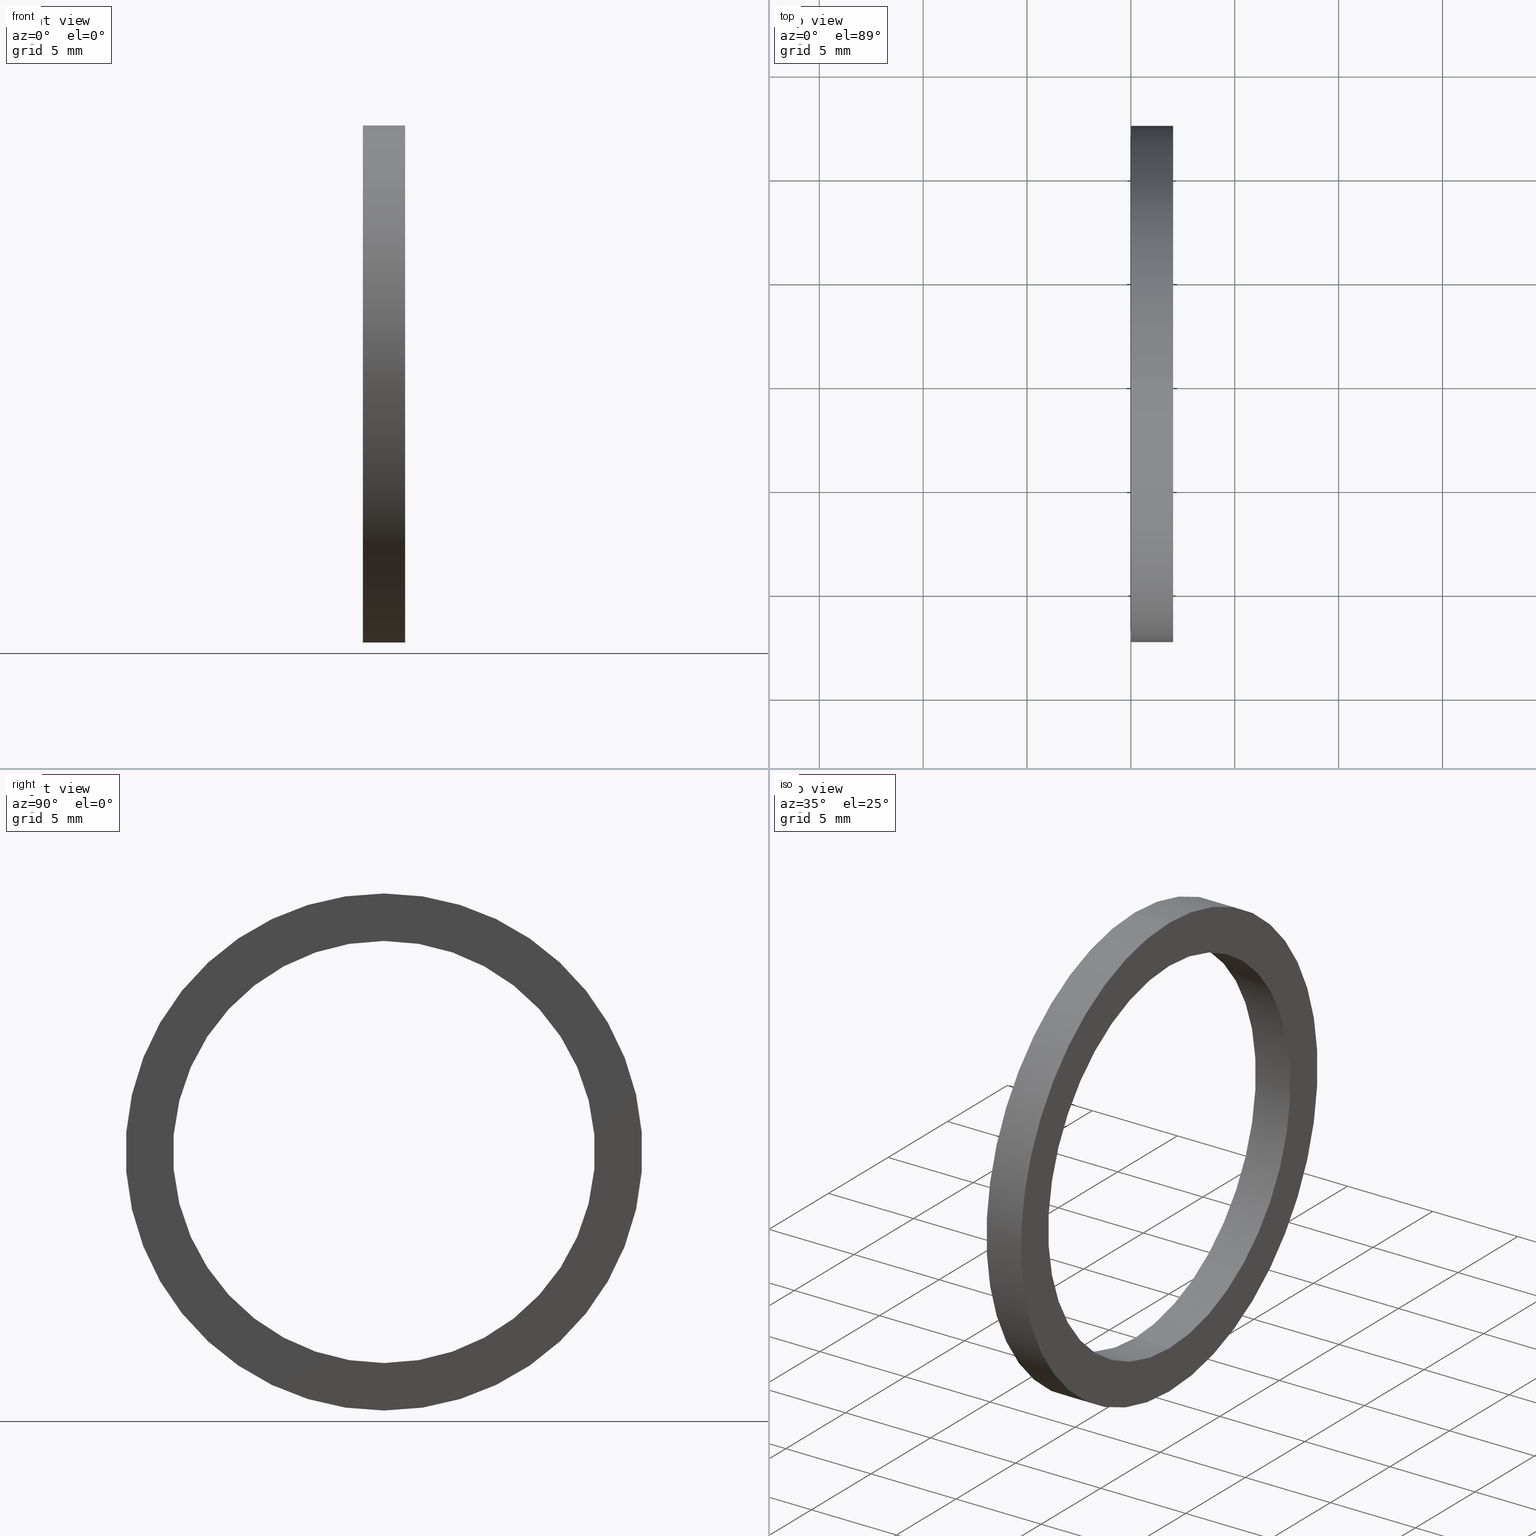
[diagram: canonical four-view strip — front | top / right | iso, engineering-drawing reading convention]
A machine part, canonical four-view strip (front | top / right | iso — engineering-drawing reading convention). The complete STEP part file that produces these views, byte-faithful:
ISO-10303-21;
HEADER;
FILE_DESCRIPTION (( 'STEP AP203' ),
    '1' );
FILE_NAME ('SR-13-VT.STEP',
    '2008-06-25T04:53:22',
    ( 'BSI05' ),
    ( 'BAYSTATE' ),
    'SwSTEP 2.0',
    'SolidWorks 2007',
    '' );
FILE_SCHEMA (( 'CONFIG_CONTROL_DESIGN' ));
ENDSEC;

DATA;
#1 = CARTESIAN_POINT ( 'NONE',  ( 0.0000000000000000000, 0.0000000000000000000, 0.0000000000000000000 ) ) ;
#2 = DIRECTION ( 'NONE',  ( -1.000000000000000000, 0.0000000000000000000, 0.0000000000000000000 ) ) ;
#3 = DIRECTION ( 'NONE',  ( 0.0000000000000000000, 0.0000000000000000000, 1.000000000000000000 ) ) ;
#4 = ORIENTED_EDGE ( 'NONE', *, *, #35, .T. ) ;
#5 = ORIENTED_EDGE ( 'NONE', *, *, #138, .T. ) ;
#6 = CLOSED_SHELL ( 'NONE', ( #48, #152, #137, #10, #13, #9 ) ) ;
#7 = ORIENTED_EDGE ( 'NONE', *, *, #155, .F. ) ;
#8 = ORIENTED_EDGE ( 'NONE', *, *, #12, .F. ) ;
#9 = ADVANCED_FACE ( 'NONE', ( #28 ), #25, .F. ) ;
#10 = ADVANCED_FACE ( 'NONE', ( #26 ), #104, .T. ) ;
#11 = ORIENTED_EDGE ( 'NONE', *, *, #156, .F. ) ;
#12 = EDGE_CURVE ( 'NONE', #32, #22, #130, .T. ) ;
#13 = ADVANCED_FACE ( 'NONE', ( #131, #126 ), #125, .T. ) ;
#14 = EDGE_LOOP ( 'NONE', ( #30, #45 ) ) ;
#15 = ORIENTED_EDGE ( 'NONE', *, *, #24, .F. ) ;
#16 = EDGE_LOOP ( 'NONE', ( #139, #136 ) ) ;
#17 = EDGE_CURVE ( 'NONE', #22, #153, #124, .T. ) ;
#18 = ORIENTED_EDGE ( 'NONE', *, *, #17, .F. ) ;
#19 = EDGE_CURVE ( 'NONE', #153, #34, #115, .T. ) ;
#20 = ORIENTED_EDGE ( 'NONE', *, *, #21, .T. ) ;
#21 = EDGE_CURVE ( 'NONE', #22, #32, #150, .T. ) ;
#22 = VERTEX_POINT ( 'NONE', #146 ) ;
#23 = ORIENTED_EDGE ( 'NONE', *, *, #24, .T. ) ;
#24 = EDGE_CURVE ( 'NONE', #32, #34, #145, .T. ) ;
#25 = CYLINDRICAL_SURFACE ( 'NONE', #107, 0.4000000000000000200 ) ;
#26 = FACE_OUTER_BOUND ( 'NONE', #42, .T. ) ;
#27 = CARTESIAN_POINT ( 'NONE',  ( -1.721125226614714300, 0.0000000000000000000, 0.0000000000000000000 ) ) ;
#28 = FACE_OUTER_BOUND ( 'NONE', #41, .T. ) ;
#29 = ORIENTED_EDGE ( 'NONE', *, *, #12, .T. ) ;
#30 = ORIENTED_EDGE ( 'NONE', *, *, #31, .T. ) ;
#31 = EDGE_CURVE ( 'NONE', #110, #111, #141, .T. ) ;
#32 = VERTEX_POINT ( 'NONE', #95 ) ;
#33 = ORIENTED_EDGE ( 'NONE', *, *, #19, .F. ) ;
#34 = VERTEX_POINT ( 'NONE', #94 ) ;
#35 = EDGE_CURVE ( 'NONE', #110, #37, #93, .T. ) ;
#36 = ORIENTED_EDGE ( 'NONE', *, *, #35, .F. ) ;
#37 = VERTEX_POINT ( 'NONE', #89 ) ;
#38 = EDGE_LOOP ( 'NONE', ( #20, #23, #33, #18 ) ) ;
#39 = ORIENTED_EDGE ( 'NONE', *, *, #17, .T. ) ;
#40 = ORIENTED_EDGE ( 'NONE', *, *, #21, .F. ) ;
#41 = EDGE_LOOP ( 'NONE', ( #11, #43, #4, #5 ) ) ;
#42 = EDGE_LOOP ( 'NONE', ( #15, #29, #39, #44 ) ) ;
#43 = ORIENTED_EDGE ( 'NONE', *, *, #31, .F. ) ;
#44 = ORIENTED_EDGE ( 'NONE', *, *, #134, .F. ) ;
#45 = ORIENTED_EDGE ( 'NONE', *, *, #109, .T. ) ;
#46 = EDGE_LOOP ( 'NONE', ( #40, #8 ) ) ;
#47 = MANIFOLD_SOLID_BREP ( 'NONE', #6 ) ;
#48 = ADVANCED_FACE ( 'NONE', ( #88 ), #86, .F. ) ;
#49 = ORIENTED_EDGE ( 'NONE', *, *, #109, .F. ) ;
#50 = AXIS2_PLACEMENT_3D ( 'NONE', #1, #2, #3 ) ;
#51 = CIRCLE ( 'NONE', #50, 0.4000000000000000200 ) ;
#52 = CARTESIAN_POINT ( 'NONE',  ( 0.0000000000000000000, 0.0000000000000000000, 0.4899999999999999900 ) ) ;
#53 = DIRECTION ( 'NONE',  ( 0.0000000000000000000, 0.0000000000000000000, 1.000000000000000000 ) ) ;
#54 = DIRECTION ( 'NONE',  ( -1.000000000000000000, 0.0000000000000000000, 0.0000000000000000000 ) ) ;
#55 = CARTESIAN_POINT ( 'NONE',  ( -1.721125226614714300, 0.0000000000000000000, 0.0000000000000000000 ) ) ;
#56 = AXIS2_PLACEMENT_3D ( 'NONE', #55, #54, #53 ) ;
#57 = CYLINDRICAL_SURFACE ( 'NONE', #56, 0.4899999999999999900 ) ;
#58 = FACE_OUTER_BOUND ( 'NONE', #38, .T. ) ;
#59 = DIRECTION ( 'NONE',  ( 0.0000000000000000000, 0.0000000000000000000, 1.000000000000000000 ) ) ;
#60 = DIRECTION ( 'NONE',  ( -1.000000000000000000, 0.0000000000000000000, 0.0000000000000000000 ) ) ;
#61 = CARTESIAN_POINT ( 'NONE',  ( 0.0000000000000000000, 0.0000000000000000000, 0.0000000000000000000 ) ) ;
#62 = AXIS2_PLACEMENT_3D ( 'NONE', #61, #60, #59 ) ;
#63 = CIRCLE ( 'NONE', #62, 0.4000000000000000200 ) ;
#64 = DIRECTION ( 'NONE',  ( 0.0000000000000000000, 0.0000000000000000000, 1.000000000000000000 ) ) ;
#65 = DIRECTION ( 'NONE',  ( -1.000000000000000000, 0.0000000000000000000, 0.0000000000000000000 ) ) ;
#66 = CARTESIAN_POINT ( 'NONE',  ( 6.123031769111884100E-018, -0.4000000000000000200, 0.0000000000000000000 ) ) ;
#67 = AXIS2_PLACEMENT_3D ( 'NONE', #66, #65, #64 ) ;
#68 = PLANE ( 'NONE',  #67 ) ;
#69 = FACE_BOUND ( 'NONE', #133, .T. ) ;
#70 = FACE_OUTER_BOUND ( 'NONE', #16, .T. ) ;
#71 = DIRECTION ( 'NONE',  ( 0.0000000000000000000, 0.0000000000000000000, 1.000000000000000000 ) ) ;
#72 = DIRECTION ( 'NONE',  ( -1.000000000000000000, 0.0000000000000000000, 0.0000000000000000000 ) ) ;
#73 = CARTESIAN_POINT ( 'NONE',  ( 0.0000000000000000000, 0.0000000000000000000, 0.0000000000000000000 ) ) ;
#74 = AXIS2_PLACEMENT_3D ( 'NONE', #73, #72, #71 ) ;
#75 = CIRCLE ( 'NONE', #74, 0.4899999999999999900 ) ;
#76 = CARTESIAN_POINT ( 'NONE',  ( 0.07999999999999996000, 4.898587196589413100E-017, -0.4000000000000000200 ) ) ;
#77 = CARTESIAN_POINT ( 'NONE',  ( 0.07999999999999996000, 0.0000000000000000000, 0.4000000000000000200 ) ) ;
#78 = DIRECTION ( 'NONE',  ( 0.0000000000000000000, 0.0000000000000000000, 1.000000000000000000 ) ) ;
#79 = DIRECTION ( 'NONE',  ( -1.000000000000000000, 0.0000000000000000000, 0.0000000000000000000 ) ) ;
#80 = CARTESIAN_POINT ( 'NONE',  ( 0.07999999999999996000, 0.0000000000000000000, 0.0000000000000000000 ) ) ;
#81 = AXIS2_PLACEMENT_3D ( 'NONE', #80, #79, #78 ) ;
#82 = CIRCLE ( 'NONE', #81, 0.4000000000000000200 ) ;
#83 = DIRECTION ( 'NONE',  ( 0.0000000000000000000, 0.0000000000000000000, 1.000000000000000000 ) ) ;
#84 = DIRECTION ( 'NONE',  ( -1.000000000000000000, 0.0000000000000000000, 0.0000000000000000000 ) ) ;
#85 = AXIS2_PLACEMENT_3D ( 'NONE', #87, #84, #83 ) ;
#86 = CYLINDRICAL_SURFACE ( 'NONE', #85, 0.4000000000000000200 ) ;
#87 = CARTESIAN_POINT ( 'NONE',  ( -1.721125226614714300, 0.0000000000000000000, 0.0000000000000000000 ) ) ;
#88 = FACE_OUTER_BOUND ( 'NONE', #132, .T. ) ;
#89 = CARTESIAN_POINT ( 'NONE',  ( 0.0000000000000000000, 0.0000000000000000000, 0.4000000000000000200 ) ) ;
#90 = DIRECTION ( 'NONE',  ( -1.000000000000000000, 0.0000000000000000000, 0.0000000000000000000 ) ) ;
#91 = VECTOR ( 'NONE', #90, 39.37007874015748100 ) ;
#92 = CARTESIAN_POINT ( 'NONE',  ( -1.721125226614714300, 0.0000000000000000000, 0.4000000000000000200 ) ) ;
#93 = LINE ( 'NONE', #92, #91 ) ;
#94 = CARTESIAN_POINT ( 'NONE',  ( 0.0000000000000000000, 6.000769315822029800E-017, -0.4899999999999999900 ) ) ;
#95 = CARTESIAN_POINT ( 'NONE',  ( 0.07999999999999996000, 6.000769315822029800E-017, -0.4899999999999999900 ) ) ;
#96 = DIRECTION ( 'NONE',  ( 0.0000000000000000000, 0.0000000000000000000, 1.000000000000000000 ) ) ;
#97 = DIRECTION ( 'NONE',  ( -1.000000000000000000, 0.0000000000000000000, 0.0000000000000000000 ) ) ;
#98 = CARTESIAN_POINT ( 'NONE',  ( 0.07999999999999996000, 0.0000000000000000000, 0.0000000000000000000 ) ) ;
#99 = CARTESIAN_POINT ( 'NONE',  ( 0.07999999999999996000, 0.0000000000000000000, 0.0000000000000000000 ) ) ;
#100 = DIRECTION ( 'NONE',  ( 0.0000000000000000000, 0.0000000000000000000, 1.000000000000000000 ) ) ;
#101 = DIRECTION ( 'NONE',  ( -1.000000000000000000, 0.0000000000000000000, 0.0000000000000000000 ) ) ;
#102 = CARTESIAN_POINT ( 'NONE',  ( -1.721125226614714300, 0.0000000000000000000, 0.0000000000000000000 ) ) ;
#103 = AXIS2_PLACEMENT_3D ( 'NONE', #102, #101, #100 ) ;
#104 = CYLINDRICAL_SURFACE ( 'NONE', #103, 0.4899999999999999900 ) ;
#105 = DIRECTION ( 'NONE',  ( 0.0000000000000000000, 0.0000000000000000000, 1.000000000000000000 ) ) ;
#106 = DIRECTION ( 'NONE',  ( -1.000000000000000000, 0.0000000000000000000, 0.0000000000000000000 ) ) ;
#107 = AXIS2_PLACEMENT_3D ( 'NONE', #27, #106, #105 ) ;
#108 = ORIENTED_EDGE ( 'NONE', *, *, #156, .T. ) ;
#109 = EDGE_CURVE ( 'NONE', #111, #110, #82, .T. ) ;
#110 = VERTEX_POINT ( 'NONE', #77 ) ;
#111 = VERTEX_POINT ( 'NONE', #76 ) ;
#112 = DIRECTION ( 'NONE',  ( -1.000000000000000000, 0.0000000000000000000, 0.0000000000000000000 ) ) ;
#113 = CARTESIAN_POINT ( 'NONE',  ( 0.0000000000000000000, 0.0000000000000000000, 0.0000000000000000000 ) ) ;
#114 = AXIS2_PLACEMENT_3D ( 'NONE', #113, #112, #151 ) ;
#115 = CIRCLE ( 'NONE', #114, 0.4899999999999999900 ) ;
#116 = CARTESIAN_POINT ( 'NONE',  ( 0.07999999999999996000, 0.0000000000000000000, 0.0000000000000000000 ) ) ;
#117 = DIRECTION ( 'NONE',  ( -1.000000000000000000, 0.0000000000000000000, 0.0000000000000000000 ) ) ;
#118 = VECTOR ( 'NONE', #117, 39.37007874015748100 ) ;
#119 = CARTESIAN_POINT ( 'NONE',  ( -1.721125226614714300, 0.0000000000000000000, 0.4899999999999999900 ) ) ;
#120 = DIRECTION ( 'NONE',  ( 0.0000000000000000000, 0.0000000000000000000, -1.000000000000000000 ) ) ;
#121 = DIRECTION ( 'NONE',  ( 1.000000000000000000, 0.0000000000000000000, 0.0000000000000000000 ) ) ;
#122 = CARTESIAN_POINT ( 'NONE',  ( 0.08000000000000000200, -0.4000000000000000200, 0.0000000000000000000 ) ) ;
#123 = AXIS2_PLACEMENT_3D ( 'NONE', #122, #121, #120 ) ;
#124 = LINE ( 'NONE', #119, #118 ) ;
#125 = PLANE ( 'NONE',  #123 ) ;
#126 = FACE_OUTER_BOUND ( 'NONE', #46, .T. ) ;
#127 = DIRECTION ( 'NONE',  ( 0.0000000000000000000, 0.0000000000000000000, 1.000000000000000000 ) ) ;
#128 = DIRECTION ( 'NONE',  ( -1.000000000000000000, 0.0000000000000000000, 0.0000000000000000000 ) ) ;
#129 = AXIS2_PLACEMENT_3D ( 'NONE', #99, #128, #127 ) ;
#130 = CIRCLE ( 'NONE', #129, 0.4899999999999999900 ) ;
#131 = FACE_BOUND ( 'NONE', #14, .T. ) ;
#132 = EDGE_LOOP ( 'NONE', ( #49, #108, #154, #36 ) ) ;
#133 = EDGE_LOOP ( 'NONE', ( #135, #7 ) ) ;
#134 = EDGE_CURVE ( 'NONE', #34, #153, #75, .T. ) ;
#135 = ORIENTED_EDGE ( 'NONE', *, *, #138, .F. ) ;
#136 = ORIENTED_EDGE ( 'NONE', *, *, #134, .T. ) ;
#137 = ADVANCED_FACE ( 'NONE', ( #70, #69 ), #68, .T. ) ;
#138 = EDGE_CURVE ( 'NONE', #37, #157, #63, .T. ) ;
#139 = ORIENTED_EDGE ( 'NONE', *, *, #19, .T. ) ;
#140 = AXIS2_PLACEMENT_3D ( 'NONE', #98, #97, #96 ) ;
#141 = CIRCLE ( 'NONE', #140, 0.4000000000000000200 ) ;
#142 = DIRECTION ( 'NONE',  ( -1.000000000000000000, 0.0000000000000000000, 0.0000000000000000000 ) ) ;
#143 = VECTOR ( 'NONE', #142, 39.37007874015748100 ) ;
#144 = CARTESIAN_POINT ( 'NONE',  ( -1.721125226614714300, 6.000769315822029800E-017, -0.4899999999999999900 ) ) ;
#145 = LINE ( 'NONE', #144, #143 ) ;
#146 = CARTESIAN_POINT ( 'NONE',  ( 0.07999999999999996000, 0.0000000000000000000, 0.4899999999999999900 ) ) ;
#147 = DIRECTION ( 'NONE',  ( 0.0000000000000000000, 0.0000000000000000000, 1.000000000000000000 ) ) ;
#148 = DIRECTION ( 'NONE',  ( -1.000000000000000000, 0.0000000000000000000, 0.0000000000000000000 ) ) ;
#149 = AXIS2_PLACEMENT_3D ( 'NONE', #116, #148, #147 ) ;
#150 = CIRCLE ( 'NONE', #149, 0.4899999999999999900 ) ;
#151 = DIRECTION ( 'NONE',  ( 0.0000000000000000000, 0.0000000000000000000, 1.000000000000000000 ) ) ;
#152 = ADVANCED_FACE ( 'NONE', ( #58 ), #57, .T. ) ;
#153 = VERTEX_POINT ( 'NONE', #52 ) ;
#154 = ORIENTED_EDGE ( 'NONE', *, *, #155, .T. ) ;
#155 = EDGE_CURVE ( 'NONE', #157, #37, #51, .T. ) ;
#156 = EDGE_CURVE ( 'NONE', #111, #157, #233, .T. ) ;
#157 = VERTEX_POINT ( 'NONE', #178 ) ;
#158 = APPROVAL_PERSON_ORGANIZATION ( #162, #160, #159 ) ;
#159 = APPROVAL_ROLE ( '' ) ;
#160 = APPROVAL ( #161, 'UNSPECIFIED' ) ;
#161 = APPROVAL_STATUS ( 'not_yet_approved' ) ;
#162 = PERSON_AND_ORGANIZATION ( #235, #234 ) ;
#163 = CC_DESIGN_DATE_AND_TIME_ASSIGNMENT ( #165, #164, ( #172 ) ) ;
#164 = DATE_TIME_ROLE ( 'classification_date' ) ;
#165 = DATE_AND_TIME ( #166, #167 ) ;
#166 = CALENDAR_DATE ( 2008, 25, 6 ) ;
#167 = LOCAL_TIME ( 10, 23, 22.00000000000000000, #168 ) ;
#168 = COORDINATED_UNIVERSAL_TIME_OFFSET ( 5, 30, .AHEAD. ) ;
#169 = CC_DESIGN_PERSON_AND_ORGANIZATION_ASSIGNMENT ( #171, #170, ( #172 ) ) ;
#170 = PERSON_AND_ORGANIZATION_ROLE ( 'classification_officer' ) ;
#171 = PERSON_AND_ORGANIZATION ( #235, #234 ) ;
#172 = SECURITY_CLASSIFICATION ( '', '', #173 ) ;
#173 = SECURITY_CLASSIFICATION_LEVEL ( 'unclassified' ) ;
#174 = CC_DESIGN_PERSON_AND_ORGANIZATION_ASSIGNMENT ( #176, #175, ( #201 ) ) ;
#175 = PERSON_AND_ORGANIZATION_ROLE ( 'design_supplier' ) ;
#176 = PERSON_AND_ORGANIZATION ( #235, #234 ) ;
#177 = DIRECTION ( 'NONE',  ( 0.0000000000000000000, 0.0000000000000000000, 1.000000000000000000 ) ) ;
#178 = CARTESIAN_POINT ( 'NONE',  ( 0.0000000000000000000, 4.898587196589413100E-017, -0.4000000000000000200 ) ) ;
#179 = DIRECTION ( 'NONE',  ( -1.000000000000000000, 0.0000000000000000000, 0.0000000000000000000 ) ) ;
#180 =( NAMED_UNIT ( * ) PLANE_ANGLE_UNIT ( ) SI_UNIT ( $, .RADIAN. ) );
#181 = MECHANICAL_CONTEXT ( 'NONE', #183, 'mechanical' ) ;
#182 = APPLICATION_PROTOCOL_DEFINITION ( 'international standard', 'config_control_design', 1994, #183 ) ;
#183 = APPLICATION_CONTEXT ( 'configuration controlled 3d designs of mechanical parts and assemblies' ) ;
#184 = DIMENSIONAL_EXPONENTS ( 1.000000000000000000, 0.0000000000000000000, 0.0000000000000000000, 0.0000000000000000000, 0.0000000000000000000, 0.0000000000000000000, 0.0000000000000000000 ) ;
#185 =( CONVERSION_BASED_UNIT ( 'INCH', #186 ) LENGTH_UNIT ( ) NAMED_UNIT ( #184 ) );
#186 = LENGTH_MEASURE_WITH_UNIT ( LENGTH_MEASURE( 0.02539999999999999900 ), #250 );
#187 = CC_DESIGN_PERSON_AND_ORGANIZATION_ASSIGNMENT ( #189, #188, ( #201 ) ) ;
#188 = PERSON_AND_ORGANIZATION_ROLE ( 'creator' ) ;
#189 = PERSON_AND_ORGANIZATION ( #235, #234 ) ;
#190 = CC_DESIGN_APPROVAL ( #198, ( #201 ) ) ;
#191 = APPROVAL_DATE_TIME ( #192, #198 ) ;
#192 = DATE_AND_TIME ( #193, #194 ) ;
#193 = CALENDAR_DATE ( 2008, 25, 6 ) ;
#194 = LOCAL_TIME ( 10, 23, 22.00000000000000000, #195 ) ;
#195 = COORDINATED_UNIVERSAL_TIME_OFFSET ( 5, 30, .AHEAD. ) ;
#196 = APPROVAL_PERSON_ORGANIZATION ( #200, #198, #197 ) ;
#197 = APPROVAL_ROLE ( '' ) ;
#198 = APPROVAL ( #199, 'UNSPECIFIED' ) ;
#199 = APPROVAL_STATUS ( 'not_yet_approved' ) ;
#200 = PERSON_AND_ORGANIZATION ( #235, #234 ) ;
#201 = PRODUCT_DEFINITION_FORMATION_WITH_SPECIFIED_SOURCE ( 'ANY', '', #236, .NOT_KNOWN. ) ;
#202 = CC_DESIGN_DATE_AND_TIME_ASSIGNMENT ( #204, #203, ( #222 ) ) ;
#203 = DATE_TIME_ROLE ( 'creation_date' ) ;
#204 = DATE_AND_TIME ( #205, #206 ) ;
#205 = CALENDAR_DATE ( 2008, 25, 6 ) ;
#206 = LOCAL_TIME ( 10, 23, 22.00000000000000000, #207 ) ;
#207 = COORDINATED_UNIVERSAL_TIME_OFFSET ( 5, 30, .AHEAD. ) ;
#208 = CC_DESIGN_PERSON_AND_ORGANIZATION_ASSIGNMENT ( #210, #209, ( #222 ) ) ;
#209 = PERSON_AND_ORGANIZATION_ROLE ( 'creator' ) ;
#210 = PERSON_AND_ORGANIZATION ( #235, #234 ) ;
#211 = CC_DESIGN_APPROVAL ( #219, ( #222 ) ) ;
#212 = APPROVAL_DATE_TIME ( #213, #219 ) ;
#213 = DATE_AND_TIME ( #214, #215 ) ;
#214 = CALENDAR_DATE ( 2008, 25, 6 ) ;
#215 = LOCAL_TIME ( 10, 23, 22.00000000000000000, #216 ) ;
#216 = COORDINATED_UNIVERSAL_TIME_OFFSET ( 5, 30, .AHEAD. ) ;
#217 = APPROVAL_PERSON_ORGANIZATION ( #221, #219, #218 ) ;
#218 = APPROVAL_ROLE ( '' ) ;
#219 = APPROVAL ( #220, 'UNSPECIFIED' ) ;
#220 = APPROVAL_STATUS ( 'not_yet_approved' ) ;
#221 = PERSON_AND_ORGANIZATION ( #235, #234 ) ;
#222 = PRODUCT_DEFINITION ( 'UNKNOWN', '', #201, #223 ) ;
#223 = DESIGN_CONTEXT ( 'detailed design', #225, 'design' ) ;
#224 = APPLICATION_PROTOCOL_DEFINITION ( 'international standard', 'config_control_design', 1994, #225 ) ;
#225 = APPLICATION_CONTEXT ( 'configuration controlled 3d designs of mechanical parts and assemblies' ) ;
#226 = SHAPE_DEFINITION_REPRESENTATION ( #230, #237 ) ;
#227 = CC_DESIGN_PERSON_AND_ORGANIZATION_ASSIGNMENT ( #229, #228, ( #236 ) ) ;
#228 = PERSON_AND_ORGANIZATION_ROLE ( 'design_owner' ) ;
#229 = PERSON_AND_ORGANIZATION ( #235, #234 ) ;
#230 = PRODUCT_DEFINITION_SHAPE ( 'NONE', 'NONE',  #222 ) ;
#231 = VECTOR ( 'NONE', #179, 39.37007874015748100 ) ;
#232 = CARTESIAN_POINT ( 'NONE',  ( -1.721125226614714300, 4.898587196589413100E-017, -0.4000000000000000200 ) ) ;
#233 = LINE ( 'NONE', #232, #231 ) ;
#234 = ORGANIZATION ( 'UNSPECIFIED', 'UNSPECIFIED', '' ) ;
#235 = PERSON ( 'UNSPECIFIED', 'UNSPECIFIED', 'UNSPECIFIED', ('UNSPECIFIED'), ('UNSPECIFIED'), ('UNSPECIFIED') ) ;
#236 = PRODUCT ( 'SR-13-VT', 'SR-13-VT', '', ( #181 ) ) ;
#237 = ADVANCED_BREP_SHAPE_REPRESENTATION ( 'SR-13-VT', ( #47, #252 ), #238 ) ;
#238 =( GEOMETRIC_REPRESENTATION_CONTEXT ( 3 ) GLOBAL_UNCERTAINTY_ASSIGNED_CONTEXT ( ( #248 ) ) GLOBAL_UNIT_ASSIGNED_CONTEXT ( ( #185, #180, #249 ) ) REPRESENTATION_CONTEXT ( 'NONE', 'WORKASPACE' ) );
#239 = CARTESIAN_POINT ( 'NONE',  ( 0.0000000000000000000, 0.0000000000000000000, 0.0000000000000000000 ) ) ;
#240 = PRODUCT_RELATED_PRODUCT_CATEGORY ( 'detail', '', ( #236 ) ) ;
#241 = CC_DESIGN_SECURITY_CLASSIFICATION ( #172, ( #201 ) ) ;
#242 = CC_DESIGN_APPROVAL ( #160, ( #172 ) ) ;
#243 = APPROVAL_DATE_TIME ( #244, #160 ) ;
#244 = DATE_AND_TIME ( #245, #246 ) ;
#245 = CALENDAR_DATE ( 2008, 25, 6 ) ;
#246 = LOCAL_TIME ( 10, 23, 22.00000000000000000, #247 ) ;
#247 = COORDINATED_UNIVERSAL_TIME_OFFSET ( 5, 30, .AHEAD. ) ;
#248 = UNCERTAINTY_MEASURE_WITH_UNIT (LENGTH_MEASURE( 1.000000000000000100E-005 ), #185, 'distance_accuracy_value', 'NONE');
#249 =( NAMED_UNIT ( * ) SI_UNIT ( $, .STERADIAN. ) SOLID_ANGLE_UNIT ( ) );
#250 =( LENGTH_UNIT ( ) NAMED_UNIT ( * ) SI_UNIT ( $, .METRE. ) );
#251 = DIRECTION ( 'NONE',  ( 1.000000000000000000, 0.0000000000000000000, 0.0000000000000000000 ) ) ;
#252 = AXIS2_PLACEMENT_3D ( 'NONE', #239, #177, #251 ) ;
ENDSEC;
END-ISO-10303-21;
